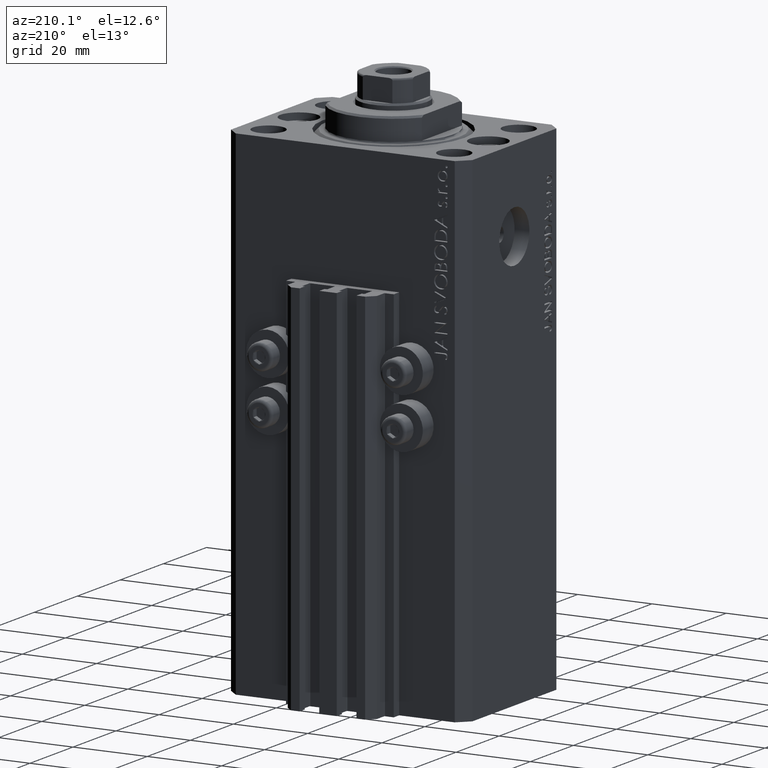
[diagram: clean part render]
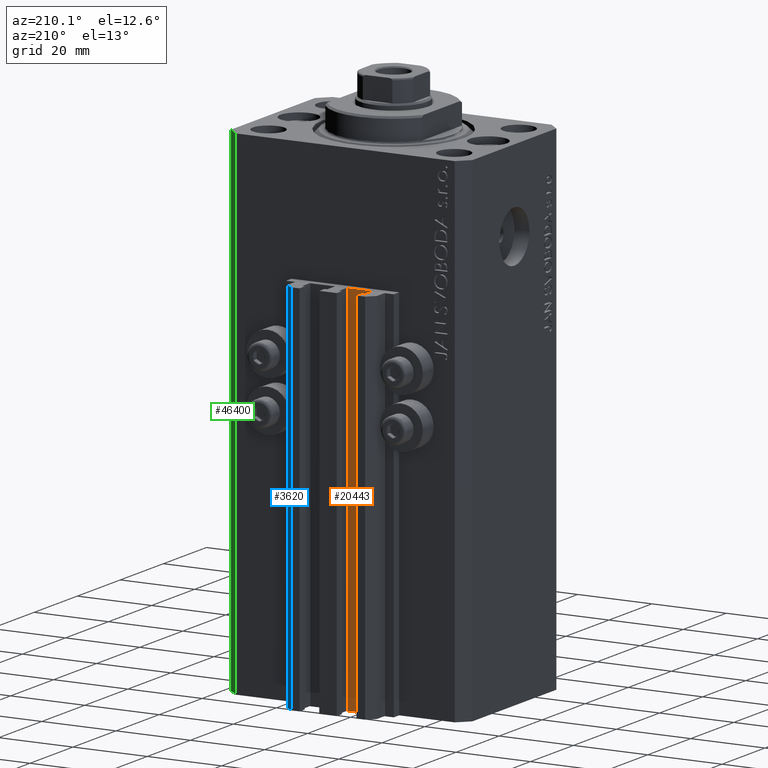
[diagram: same view with three faces highlighted in distinct colors, each labeled with its STEP entity id]
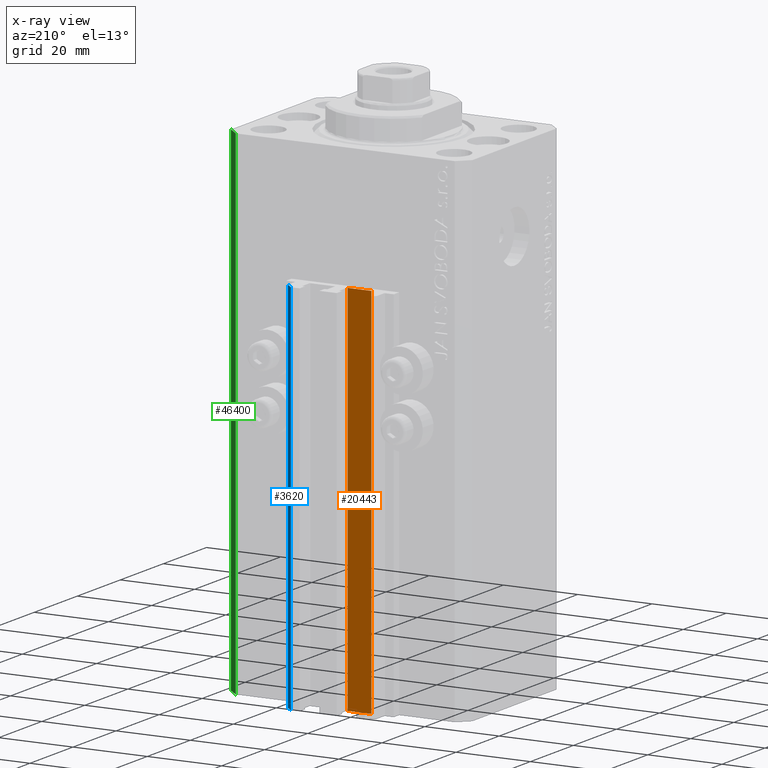
[diagram: x-ray of the same camera — body ghosted, the three highlighted faces saturated]
A machine part, auxiliary view with three faces highlighted in distinct colors.
The next image is the same camera in x-ray (body ghosted, the three faces saturated) — at least one of them is partly hidden behind the body in this view.
Their STEP definitions:

[orange] entity #20443 — the highlighted planar face has unit normal (0, 1, 0).
#205 = EDGE_LOOP ( 'NONE', ( #33268, #8183, #8880, #13121 ) ) ;
#701 = LINE ( 'NONE', #29830, #23490 ) ;
#2779 = LINE ( 'NONE', #39316, #17674 ) ;
#2789 = CARTESIAN_POINT ( 'NONE',  ( -8.199999999999999289, 24.49999999999949551, -134.0000000000000000 ) ) ;
#5752 = DIRECTION ( 'NONE',  ( 0.000000000000000000, 1.000000000000000000, -0.000000000000000000 ) ) ;
#6612 = DIRECTION ( 'NONE',  ( -1.000000000000000000, 0.000000000000000000, 0.000000000000000000 ) ) ;
#7286 = VERTEX_POINT ( 'NONE', #31062 ) ;
#8183 = ORIENTED_EDGE ( 'NONE', *, *, #43976, .F. ) ;
#8642 = VECTOR ( 'NONE', #21435, 1000.000000000000000 ) ;
#8880 = ORIENTED_EDGE ( 'NONE', *, *, #9757, .T. ) ;
#9567 = DIRECTION ( 'NONE',  ( 0.000000000000000000, 0.000000000000000000, 1.000000000000000000 ) ) ;
#9757 = EDGE_CURVE ( 'NONE', #42595, #39396, #701, .T. ) ;
#9802 = CARTESIAN_POINT ( 'NONE',  ( -1.800000000000000933, 24.49999999999949551, -134.0000000000000000 ) ) ;
#10220 = VERTEX_POINT ( 'NONE', #23909 ) ;
#10715 = DIRECTION ( 'NONE',  ( 0.000000000000000000, 0.000000000000000000, 1.000000000000000000 ) ) ;
#13121 = ORIENTED_EDGE ( 'NONE', *, *, #39220, .T. ) ;
#14765 = CARTESIAN_POINT ( 'NONE',  ( -1.800000000000000933, 24.49999999999949551, -134.0000000000000000 ) ) ;
#15225 = CARTESIAN_POINT ( 'NONE',  ( -8.199999999999999289, 24.49999999999949551, -134.0000000000000000 ) ) ;
#17165 = DIRECTION ( 'NONE',  ( -1.000000000000000000, 0.000000000000000000, 0.000000000000000000 ) ) ;
#17674 = VECTOR ( 'NONE', #6612, 1000.000000000000000 ) ;
#18327 = LINE ( 'NONE', #15225, #8642 ) ;
#20443 = ADVANCED_FACE ( 'NONE', ( #35103 ), #38458, .T. ) ;
#21435 = DIRECTION ( 'NONE',  ( 0.000000000000000000, 0.000000000000000000, 1.000000000000000000 ) ) ;
#21713 = VECTOR ( 'NONE', #10715, 1000.000000000000000 ) ;
#23490 = VECTOR ( 'NONE', #17165, 1000.000000000000000 ) ;
#23909 = CARTESIAN_POINT ( 'NONE',  ( -1.800000000000000933, 24.49999999999949551, -33.00000000000000000 ) ) ;
#29085 = LINE ( 'NONE', #14765, #21713 ) ;
#29830 = CARTESIAN_POINT ( 'NONE',  ( -1.800000000000000933, 24.49999999999949551, -134.0000000000000000 ) ) ;
#29846 = AXIS2_PLACEMENT_3D ( 'NONE', #9802, #5752, #9567 ) ;
#31062 = CARTESIAN_POINT ( 'NONE',  ( -8.199999999999999289, 24.49999999999949551, -33.00000000000000000 ) ) ;
#33268 = ORIENTED_EDGE ( 'NONE', *, *, #35815, .F. ) ;
#35103 = FACE_OUTER_BOUND ( 'NONE', #205, .T. ) ;
#35815 = EDGE_CURVE ( 'NONE', #10220, #7286, #2779, .T. ) ;
#38458 = PLANE ( 'NONE',  #29846 ) ;
#39220 = EDGE_CURVE ( 'NONE', #39396, #7286, #18327, .T. ) ;
#39316 = CARTESIAN_POINT ( 'NONE',  ( -1.800000000000000933, 24.49999999999949551, -33.00000000000000000 ) ) ;
#39396 = VERTEX_POINT ( 'NONE', #2789 ) ;
#42595 = VERTEX_POINT ( 'NONE', #44202 ) ;
#43976 = EDGE_CURVE ( 'NONE', #42595, #10220, #29085, .T. ) ;
#44202 = CARTESIAN_POINT ( 'NONE',  ( -1.800000000000000933, 24.49999999999949551, -134.0000000000000000 ) ) ;

[blue] entity #3620 — the highlighted planar face has unit normal (0.7071, 0.7071, 0).
#777 = DIRECTION ( 'NONE',  ( 0.7071067811865442421, 0.7071067811865509034, -0.000000000000000000 ) ) ;
#1429 = ORIENTED_EDGE ( 'NONE', *, *, #3356, .F. ) ;
#1598 = VECTOR ( 'NONE', #44612, 1000.000000000000000 ) ;
#1636 = CARTESIAN_POINT ( 'NONE',  ( 9.999999999999994671, 30.49999999999949551, -134.0000000000000000 ) ) ;
#1735 = DIRECTION ( 'NONE',  ( -0.7071067811865507924, 0.7071067811865441310, 0.000000000000000000 ) ) ;
#3356 = EDGE_CURVE ( 'NONE', #34418, #36077, #39213, .T. ) ;
#3620 = ADVANCED_FACE ( 'NONE', ( #33498 ), #15360, .T. ) ;
#4330 = CARTESIAN_POINT ( 'NONE',  ( 9.999999999999994671, 30.49999999999949551, -134.0000000000000000 ) ) ;
#5160 = VERTEX_POINT ( 'NONE', #1636 ) ;
#7571 = LINE ( 'NONE', #47169, #32844 ) ;
#12017 = CARTESIAN_POINT ( 'NONE',  ( 12.00000000000000178, 28.49999999999950973, -134.0000000000000000 ) ) ;
#12258 = EDGE_CURVE ( 'NONE', #5160, #47043, #44173, .T. ) ;
#12755 = EDGE_CURVE ( 'NONE', #36077, #47043, #7571, .T. ) ;
#13504 = EDGE_CURVE ( 'NONE', #34418, #5160, #15986, .T. ) ;
#15360 = PLANE ( 'NONE',  #16456 ) ;
#15986 = LINE ( 'NONE', #19779, #1598 ) ;
#16456 = AXIS2_PLACEMENT_3D ( 'NONE', #12017, #777, #1735 ) ;
#19779 = CARTESIAN_POINT ( 'NONE',  ( 12.00000000000000178, 28.49999999999950973, -134.0000000000000000 ) ) ;
#21045 = DIRECTION ( 'NONE',  ( 0.000000000000000000, 0.000000000000000000, 1.000000000000000000 ) ) ;
#24680 = CARTESIAN_POINT ( 'NONE',  ( 12.00000000000000178, 28.49999999999950973, -33.00000000000000000 ) ) ;
#24864 = CARTESIAN_POINT ( 'NONE',  ( 12.00000000000000178, 28.49999999999950973, -134.0000000000000000 ) ) ;
#26047 = DIRECTION ( 'NONE',  ( 0.000000000000000000, 0.000000000000000000, 1.000000000000000000 ) ) ;
#27851 = VECTOR ( 'NONE', #21045, 1000.000000000000000 ) ;
#30231 = EDGE_LOOP ( 'NONE', ( #45324, #1429, #44240, #34132 ) ) ;
#32844 = VECTOR ( 'NONE', #46707, 1000.000000000000000 ) ;
#33498 = FACE_OUTER_BOUND ( 'NONE', #30231, .T. ) ;
#34132 = ORIENTED_EDGE ( 'NONE', *, *, #12258, .T. ) ;
#34418 = VERTEX_POINT ( 'NONE', #39639 ) ;
#36077 = VERTEX_POINT ( 'NONE', #24680 ) ;
#37427 = VECTOR ( 'NONE', #26047, 1000.000000000000000 ) ;
#39213 = LINE ( 'NONE', #24864, #27851 ) ;
#39639 = CARTESIAN_POINT ( 'NONE',  ( 12.00000000000000178, 28.49999999999950973, -134.0000000000000000 ) ) ;
#44173 = LINE ( 'NONE', #4330, #37427 ) ;
#44240 = ORIENTED_EDGE ( 'NONE', *, *, #13504, .T. ) ;
#44612 = DIRECTION ( 'NONE',  ( -0.7071067811865507924, 0.7071067811865441310, 0.000000000000000000 ) ) ;
#45324 = ORIENTED_EDGE ( 'NONE', *, *, #12755, .F. ) ;
#45681 = CARTESIAN_POINT ( 'NONE',  ( 9.999999999999994671, 30.49999999999949551, -33.00000000000000000 ) ) ;
#46707 = DIRECTION ( 'NONE',  ( -0.7071067811865507924, 0.7071067811865441310, 0.000000000000000000 ) ) ;
#47043 = VERTEX_POINT ( 'NONE', #45681 ) ;
#47169 = CARTESIAN_POINT ( 'NONE',  ( 12.00000000000000178, 28.49999999999950973, -33.00000000000000000 ) ) ;

[green] entity #46400 — the highlighted planar face has unit normal (0.7071, 0.7071, 0).
#857 = VECTOR ( 'NONE', #34076, 1000.000000000000000 ) ;
#1582 = CARTESIAN_POINT ( 'NONE',  ( 29.49999999999707967, 22.49999999999952038, -134.0000000000000000 ) ) ;
#1640 = FACE_OUTER_BOUND ( 'NONE', #28116, .T. ) ;
#3915 = LINE ( 'NONE', #44002, #30535 ) ;
#4947 = LINE ( 'NONE', #33347, #18056 ) ;
#7742 = EDGE_CURVE ( 'NONE', #38799, #24383, #4947, .T. ) ;
#7819 = DIRECTION ( 'NONE',  ( -0.7071067811865344721, 0.7071067811865606734, 0.000000000000000000 ) ) ;
#7905 = EDGE_CURVE ( 'NONE', #38295, #33237, #35259, .T. ) ;
#7962 = CARTESIAN_POINT ( 'NONE',  ( 29.49999999999707967, 22.49999999999952038, 0.000000000000000000 ) ) ;
#8739 = CARTESIAN_POINT ( 'NONE',  ( 32.49999999999702993, 19.49999999999945999, 0.000000000000000000 ) ) ;
#13037 = DIRECTION ( 'NONE',  ( -0.7071067811865344721, 0.7071067811865606734, 0.000000000000000000 ) ) ;
#13581 = ORIENTED_EDGE ( 'NONE', *, *, #7905, .T. ) ;
#15049 = CARTESIAN_POINT ( 'NONE',  ( 32.49999999999702993, 19.49999999999945999, -134.0000000000000000 ) ) ;
#15822 = EDGE_CURVE ( 'NONE', #38295, #38799, #3915, .T. ) ;
#18056 = VECTOR ( 'NONE', #7819, 1000.000000000000000 ) ;
#18070 = ORIENTED_EDGE ( 'NONE', *, *, #7742, .F. ) ;
#19249 = LINE ( 'NONE', #1582, #857 ) ;
#19769 = PLANE ( 'NONE',  #34763 ) ;
#23006 = DIRECTION ( 'NONE',  ( 0.000000000000000000, 0.000000000000000000, 1.000000000000000000 ) ) ;
#24383 = VERTEX_POINT ( 'NONE', #7962 ) ;
#27639 = DIRECTION ( 'NONE',  ( -0.7071067811865344721, 0.7071067811865606734, 0.000000000000000000 ) ) ;
#28116 = EDGE_LOOP ( 'NONE', ( #18070, #28747, #13581, #31069 ) ) ;
#28747 = ORIENTED_EDGE ( 'NONE', *, *, #15822, .F. ) ;
#30535 = VECTOR ( 'NONE', #23006, 1000.000000000000000 ) ;
#31069 = ORIENTED_EDGE ( 'NONE', *, *, #33983, .T. ) ;
#31176 = CARTESIAN_POINT ( 'NONE',  ( 32.49999999999702993, 19.49999999999945999, -134.0000000000000000 ) ) ;
#33237 = VERTEX_POINT ( 'NONE', #45727 ) ;
#33347 = CARTESIAN_POINT ( 'NONE',  ( 32.49999999999702993, 19.49999999999945999, 0.000000000000000000 ) ) ;
#33983 = EDGE_CURVE ( 'NONE', #33237, #24383, #19249, .T. ) ;
#34076 = DIRECTION ( 'NONE',  ( 0.000000000000000000, 0.000000000000000000, 1.000000000000000000 ) ) ;
#34129 = DIRECTION ( 'NONE',  ( 0.7071067811865606734, 0.7071067811865344721, -0.000000000000000000 ) ) ;
#34763 = AXIS2_PLACEMENT_3D ( 'NONE', #45777, #34129, #27639 ) ;
#35259 = LINE ( 'NONE', #31176, #46283 ) ;
#38295 = VERTEX_POINT ( 'NONE', #15049 ) ;
#38799 = VERTEX_POINT ( 'NONE', #8739 ) ;
#44002 = CARTESIAN_POINT ( 'NONE',  ( 32.49999999999702993, 19.49999999999945999, -134.0000000000000000 ) ) ;
#45727 = CARTESIAN_POINT ( 'NONE',  ( 29.49999999999707967, 22.49999999999952038, -134.0000000000000000 ) ) ;
#45777 = CARTESIAN_POINT ( 'NONE',  ( 32.49999999999702993, 19.49999999999945999, -134.0000000000000000 ) ) ;
#46283 = VECTOR ( 'NONE', #13037, 1000.000000000000000 ) ;
#46400 = ADVANCED_FACE ( 'NONE', ( #1640 ), #19769, .T. ) ;